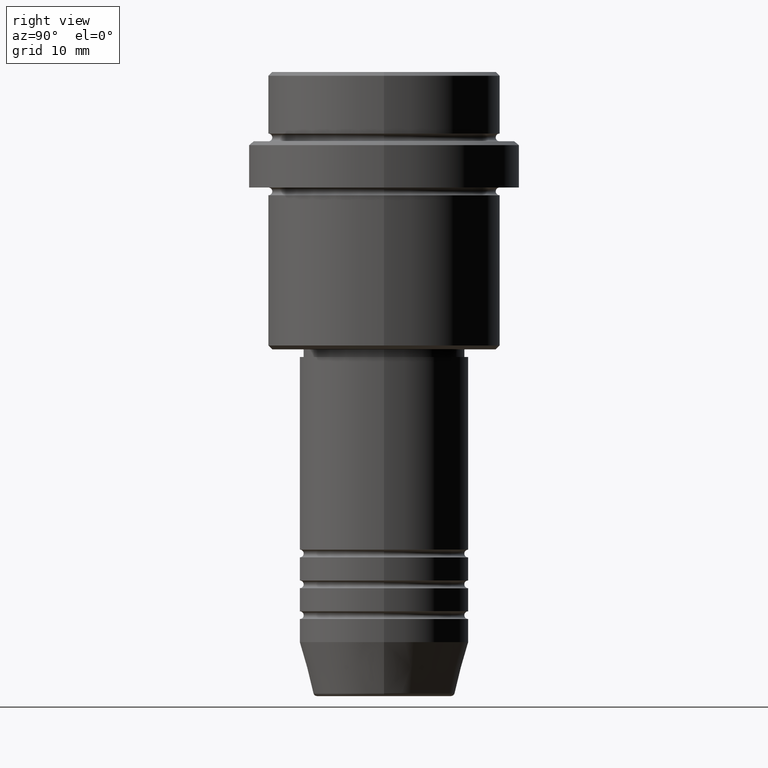
[diagram: clean part render]
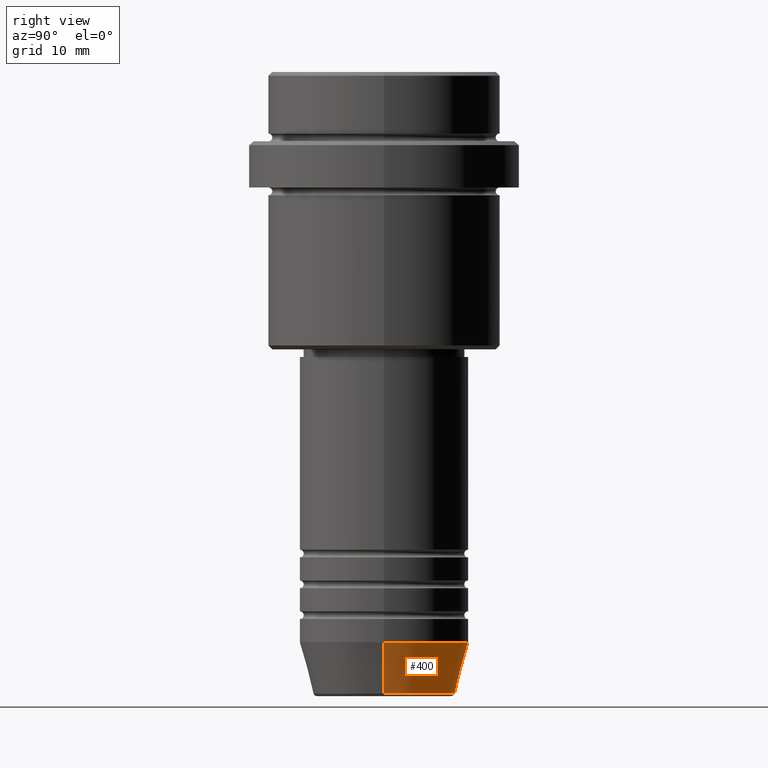
[diagram: same view with one face highlighted and labeled with its STEP entity id]
A machine part, right view. The second image highlights one B-rep face of the part: STEP entity #400.
In plain terms, the highlighted conical surface has half-angle 15 deg.
Its self-contained STEP definition (entity closure, byte-faithful):
#26 = CARTESIAN_POINT ( 'NONE',  ( 11.00000000000000000, 0.000000000000000000, -74.00000000000000000 ) ) ;
#31 = ORIENTED_EDGE ( 'NONE', *, *, #1213, .F. ) ;
#71 = DIRECTION ( 'NONE',  ( 1.000000000000000000, 0.000000000000000000, 0.000000000000000000 ) ) ;
#144 = CARTESIAN_POINT ( 'NONE',  ( -11.00000000000000000, 1.347111479062088405E-15, -74.00000000000000000 ) ) ;
#161 = EDGE_CURVE ( 'NONE', #479, #1383, #693, .T. ) ;
#241 = VECTOR ( 'NONE', #1236, 1000.000000000000000 ) ;
#257 = DIRECTION ( 'NONE',  ( 1.000000000000000000, 0.000000000000000000, 0.000000000000000000 ) ) ;
#272 = EDGE_CURVE ( 'NONE', #891, #1383, #563, .T. ) ;
#301 = LINE ( 'NONE', #1169, #976 ) ;
#314 = AXIS2_PLACEMENT_3D ( 'NONE', #807, #697, #257 ) ;
#351 = EDGE_CURVE ( 'NONE', #1385, #479, #387, .T. ) ;
#387 = CIRCLE ( 'NONE', #498, 9.223655072137194821 ) ;
#400 = ADVANCED_FACE ( 'NONE', ( #425 ), #1151, .T. ) ;
#425 = FACE_OUTER_BOUND ( 'NONE', #1223, .T. ) ;
#479 = VERTEX_POINT ( 'NONE', #643 ) ;
#498 = AXIS2_PLACEMENT_3D ( 'NONE', #604, #923, #71 ) ;
#563 = CIRCLE ( 'NONE', #314, 11.00000000000000000 ) ;
#604 = CARTESIAN_POINT ( 'NONE',  ( 0.000000000000000000, 0.000000000000000000, -80.62940952255124216 ) ) ;
#606 = ORIENTED_EDGE ( 'NONE', *, *, #351, .T. ) ;
#643 = CARTESIAN_POINT ( 'NONE',  ( -9.223655072137194821, 1.238341722557647399E-15, -80.62940952255124216 ) ) ;
#693 = LINE ( 'NONE', #144, #241 ) ;
#697 = DIRECTION ( 'NONE',  ( -0.000000000000000000, -0.000000000000000000, 1.000000000000000000 ) ) ;
#721 = AXIS2_PLACEMENT_3D ( 'NONE', #1058, #1403, #748 ) ;
#730 = CARTESIAN_POINT ( 'NONE',  ( 9.223655072137194821, 0.000000000000000000, -80.62940952255124216 ) ) ;
#748 = DIRECTION ( 'NONE',  ( 1.000000000000000000, 0.000000000000000000, 0.000000000000000000 ) ) ;
#807 = CARTESIAN_POINT ( 'NONE',  ( 0.000000000000000000, 0.000000000000000000, -74.00000000000000000 ) ) ;
#891 = VERTEX_POINT ( 'NONE', #26 ) ;
#901 = DIRECTION ( 'NONE',  ( 0.2588190451025213501, 0.000000000000000000, 0.9659258262890680902 ) ) ;
#923 = DIRECTION ( 'NONE',  ( -0.000000000000000000, -0.000000000000000000, 1.000000000000000000 ) ) ;
#976 = VECTOR ( 'NONE', #901, 1000.000000000000000 ) ;
#986 = ORIENTED_EDGE ( 'NONE', *, *, #272, .F. ) ;
#1058 = CARTESIAN_POINT ( 'NONE',  ( 0.000000000000000000, 0.000000000000000000, -74.00000000000000000 ) ) ;
#1151 = CONICAL_SURFACE ( 'NONE', #721, 11.00000000000000000, 0.2617993877991500740 ) ;
#1169 = CARTESIAN_POINT ( 'NONE',  ( 11.00000000000000000, 0.000000000000000000, -74.00000000000000000 ) ) ;
#1213 = EDGE_CURVE ( 'NONE', #1385, #891, #301, .T. ) ;
#1215 = ORIENTED_EDGE ( 'NONE', *, *, #161, .T. ) ;
#1223 = EDGE_LOOP ( 'NONE', ( #606, #1215, #986, #31 ) ) ;
#1236 = DIRECTION ( 'NONE',  ( -0.2588190451025213501, 3.169619151431772337E-17, 0.9659258262890680902 ) ) ;
#1304 = CARTESIAN_POINT ( 'NONE',  ( -11.00000000000000000, 1.347111479062088405E-15, -74.00000000000000000 ) ) ;
#1383 = VERTEX_POINT ( 'NONE', #1304 ) ;
#1385 = VERTEX_POINT ( 'NONE', #730 ) ;
#1403 = DIRECTION ( 'NONE',  ( -0.000000000000000000, -0.000000000000000000, 1.000000000000000000 ) ) ;